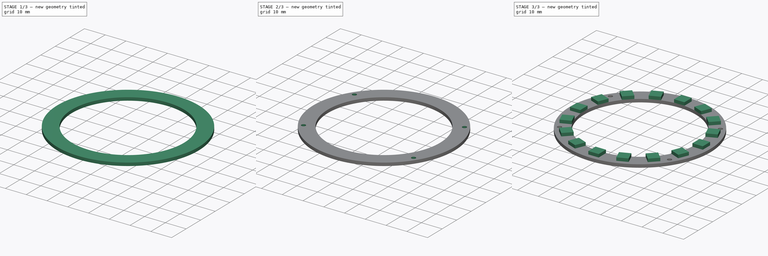
[diagram: build sequence overview — one tinted view per stage of 3, left to right]
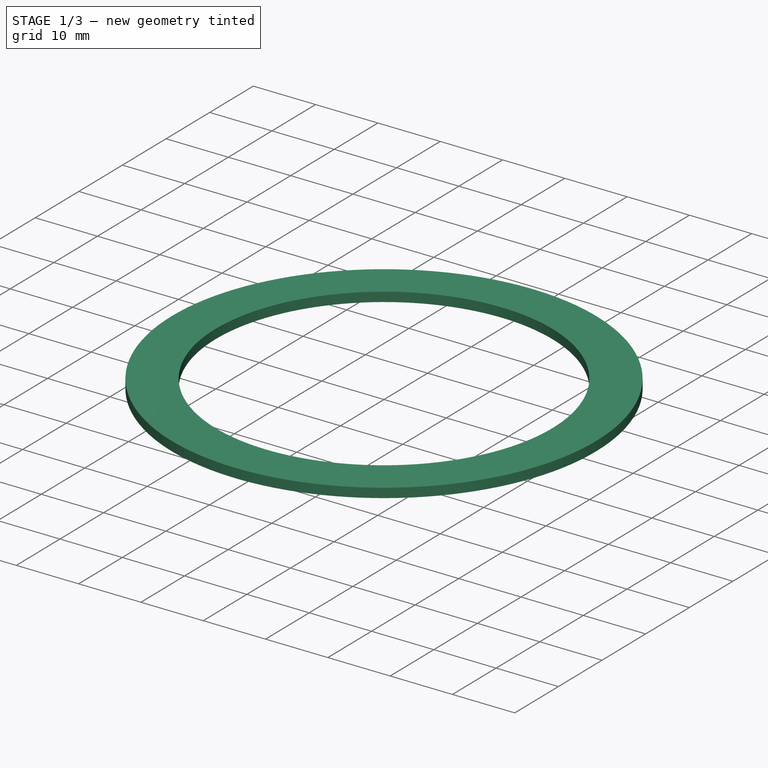
[diagram: stage 1 of 3 — iso view after this stage's code; geometry added in this stage tinted green]
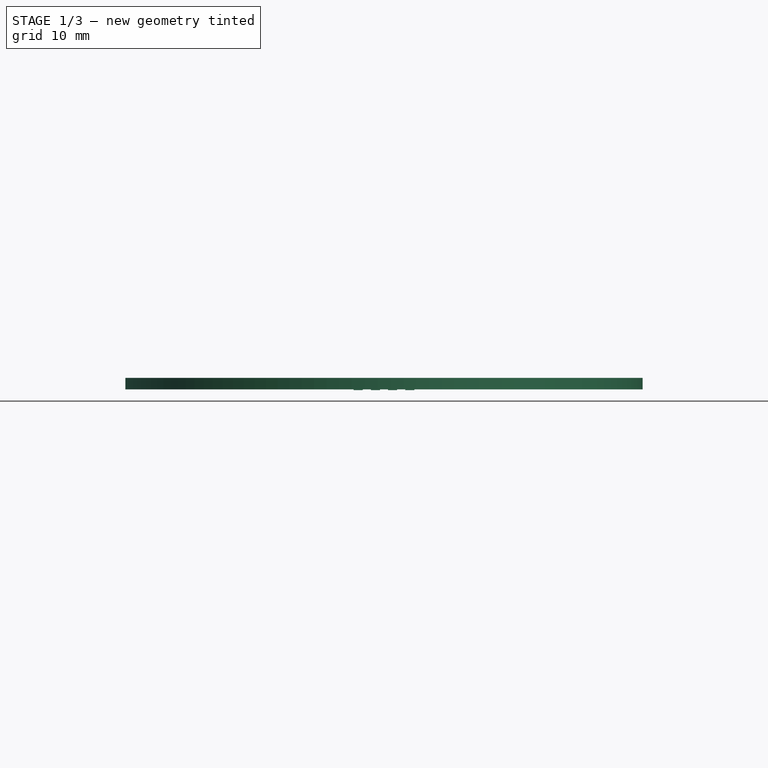
[diagram: stage 1 of 3 — front view after this stage's code; geometry added in this stage tinted green]
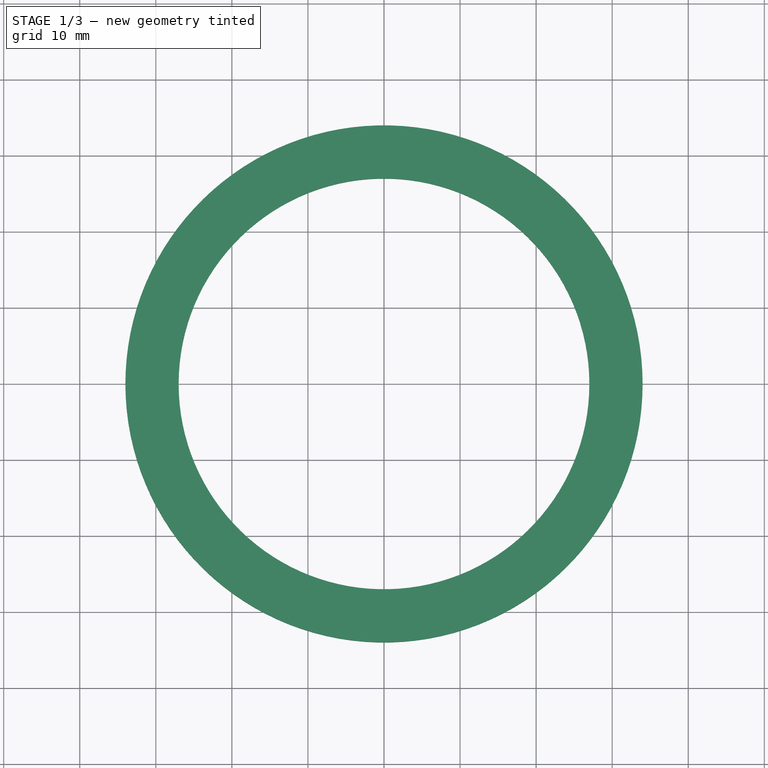
[diagram: stage 1 of 3 — top view after this stage's code; geometry added in this stage tinted green]
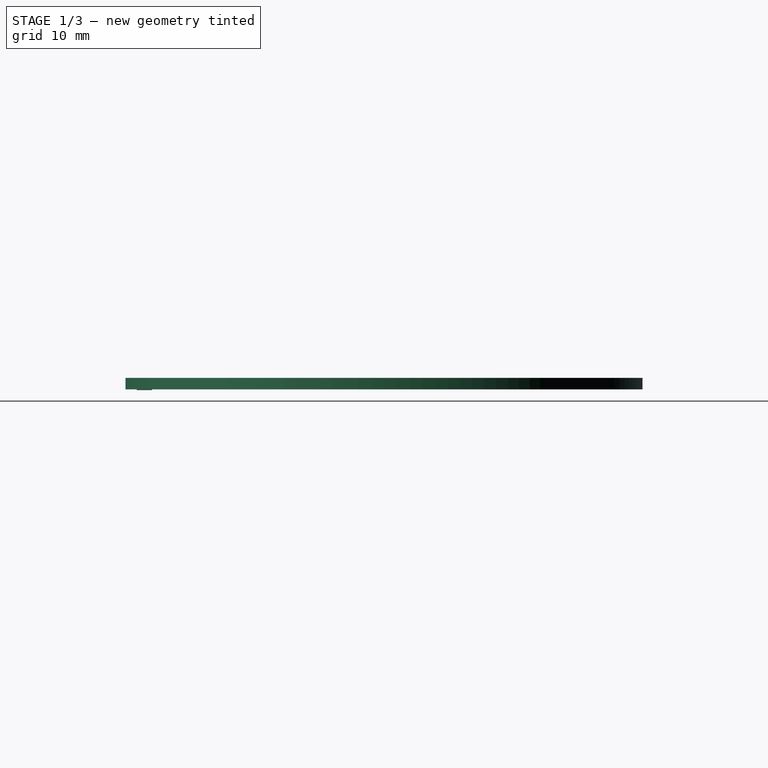
[diagram: stage 1 of 3 — right view after this stage's code; geometry added in this stage tinted green]
FCSTD DOCUMENT  (FreeCAD 1.0R39285 (Git))
Label: LED-Ring
License: All rights reserved
LicenseURL: https://en.wikipedia.org/wiki/All_rights_reserved
objects: Sketcher::SketchObject×4, PartDesign::Pad×3, PartDesign::Pocket×1, PartDesign::PolarPattern×1, PartDesign::Body×1
note: 23 computed .brp shape members not serialized (recipe doc carries the construction recipe); baked Part::Feature solids carry a one-line shape summary decoded from their .brp

FEATURE [Sketcher::SketchObject] Sketch
  ArcFitTolerance = 1e-06
  AttachmentSupport = -> [XY_Plane]
  FullyConstrained = true
  MakeInternals = false
  MapMode = 5
  sketch-geometry (2):
    g0: Circle CenterX=0 CenterY=0 CenterZ=0 NormalX=0 NormalY=0 NormalZ=1 AngleXU=0 Radius=27
    g1: Circle CenterX=0 CenterY=0 CenterZ=0 NormalX=0 NormalY=0 NormalZ=1 AngleXU=0 Radius=34
  constraints (4):
    c: Diameter(g0) = 54
    c: Coincident(g0,g-1)
    c: Diameter(g1) = 68
    c: Coincident(g1,g0)
FEATURE [PartDesign::Pad] Pad
  Direction = (0,0,1)
  Length = 1.5
  Length2 = 10
  Profile = -> Sketch
  ReferenceAxis = -> Sketch [N_Axis]
  Refine = true
  Suppressed = false
  Type = 0
FEATURE [Sketcher::SketchObject] Sketch001
  ArcFitTolerance = 1e-06
  AttachmentSupport = -> [Pad]
  ExternalGeometry = -> [Pad]
  FullyConstrained = true
  MakeInternals = false
  MapMode = 5
  Placement = pos=(0,0,0) rot=(1,0,0;3.14159rad)
  sketch-geometry (21):
    g0: LineSegment StartX=-4 StartY=32.5 StartZ=0 EndX=-4 EndY=30.5 EndZ=0
    g1: LineSegment StartX=-4 StartY=30.5 StartZ=0 EndX=-2.8 EndY=30.5 EndZ=0
    g2: LineSegment StartX=-2.8 StartY=30.5 StartZ=0 EndX=-2.8 EndY=32.5 EndZ=0
    g3: LineSegment StartX=-2.8 StartY=32.5 StartZ=0 EndX=-4 EndY=32.5 EndZ=0
    g4: LineSegment StartX=-1.73333 StartY=32.5 StartZ=0 EndX=-1.73333 EndY=30.5 EndZ=0
    g5: LineSegment StartX=-1.73333 StartY=30.5 StartZ=0 EndX=-0.533333 EndY=30.5 EndZ=0
    g6: LineSegment StartX=-0.533333 StartY=30.5 StartZ=0 EndX=-0.533333 EndY=32.5 EndZ=0
    g7: LineSegment StartX=-0.533333 StartY=32.5 StartZ=0 EndX=-1.73333 EndY=32.5 EndZ=0
    g8: LineSegment StartX=0.533333 StartY=32.5 StartZ=0 EndX=0.533333 EndY=30.5 EndZ=0
    g9: LineSegment StartX=0.533333 StartY=30.5 StartZ=0 EndX=1.73333 EndY=30.5 EndZ=0
    g10: LineSegment StartX=1.73333 StartY=30.5 StartZ=0 EndX=1.73333 EndY=32.5 EndZ=0
    g11: LineSegment StartX=1.73333 StartY=32.5 StartZ=0 EndX=0.533333 EndY=32.5 EndZ=0
    g12: LineSegment StartX=2.8 StartY=32.5 StartZ=0 EndX=2.8 EndY=30.5 EndZ=0
    g13: LineSegment StartX=2.8 StartY=30.5 StartZ=0 EndX=4 EndY=30.5 EndZ=0
    g14: LineSegment StartX=4 StartY=30.5 StartZ=0 EndX=4 EndY=32.5 EndZ=0
    g15: LineSegment StartX=4 StartY=32.5 StartZ=0 EndX=2.8 EndY=32.5 EndZ=0
    g16: LineSegment [constr] StartX=-2.8 StartY=32.5 StartZ=0 EndX=-1.73333 EndY=32.5 EndZ=0
    g17: LineSegment [constr] StartX=-0.533333 StartY=32.5 StartZ=0 EndX=0.533333 EndY=32.5 EndZ=0
    g18: LineSegment [constr] StartX=1.73333 StartY=32.5 StartZ=0 EndX=2.8 EndY=32.5 EndZ=0
    g19: GeomPoint [constr] X=0 Y=32.5 Z=0
    g20: GeomPoint [constr] X=0 Y=34 Z=0
  constraints (57):
    c: Coincident(g0,g1)
    c: Coincident(g1,g2)
    c: Coincident(g2,g3)
    c: Coincident(g3,g0)
    c: Vertical(g0)
    c: Vertical(g2)
    c: Horizontal(g1)
    c: Horizontal(g3)
    c: DistanceX(g3,g3) = 1.2
    c: DistanceY(g0,g0) = 2
    c: Coincident(g4,g5)
    c: Coincident(g5,g6)
    c: Coincident(g6,g7)
    c: Coincident(g7,g4)
    c: Vertical(g4)
    c: Vertical(g6)
    c: Horizontal(g5)
    c: Horizontal(g7)
    c: Coincident(g8,g9)
    c: Coincident(g9,g10)
    c: Coincident(g10,g11)
    c: Coincident(g11,g8)
    c: Vertical(g8)
    c: Vertical(g10)
    c: Horizontal(g9)
    c: Horizontal(g11)
    c: Coincident(g12,g13)
    c: Coincident(g13,g14)
    c: Coincident(g14,g15)
    c: Coincident(g15,g12)
    c: Vertical(g12)
    c: Vertical(g14)
    c: Horizontal(g13)
    c: Horizontal(g15)
    c: Equal(g2,g4)
    c: Equal(g4,g8)
    c: Equal(g8,g12)
    c: Equal(g3,g7)
    c: Equal(g7,g11)
    c: Equal(g11,g15)
    c: Horizontal(g2,g4)
    c: Horizontal(g4,g8)
    c: Horizontal(g8,g12)
    c: Coincident(g16,g2)
    c: Coincident(g16,g4)
    c: Coincident(g17,g6)
    c: Coincident(g17,g8)
    c: Coincident(g18,g10)
    c: Coincident(g18,g12)
    c: Equal(g16,g17)
    c: Equal(g17,g18)
    c: DistanceX(g0,g14) = 8
    c: Symmetric(g17,g17,g19)
    c: PointOnObject(g19,g-2)
    c: PointOnObject(g20,g-2)
    c: PointOnObject(g20,g-3)
    c: DistanceY(g19,g20) = 1.5
FEATURE [PartDesign::Pad] Pad001
  BaseFeature = -> Pad
  Direction = (0,0,-1)
  Length = 0.1
  Length2 = 10
  Profile = -> Sketch001
  ReferenceAxis = -> Sketch001 [N_Axis]
  Refine = true
  Suppressed = false
  Type = 0
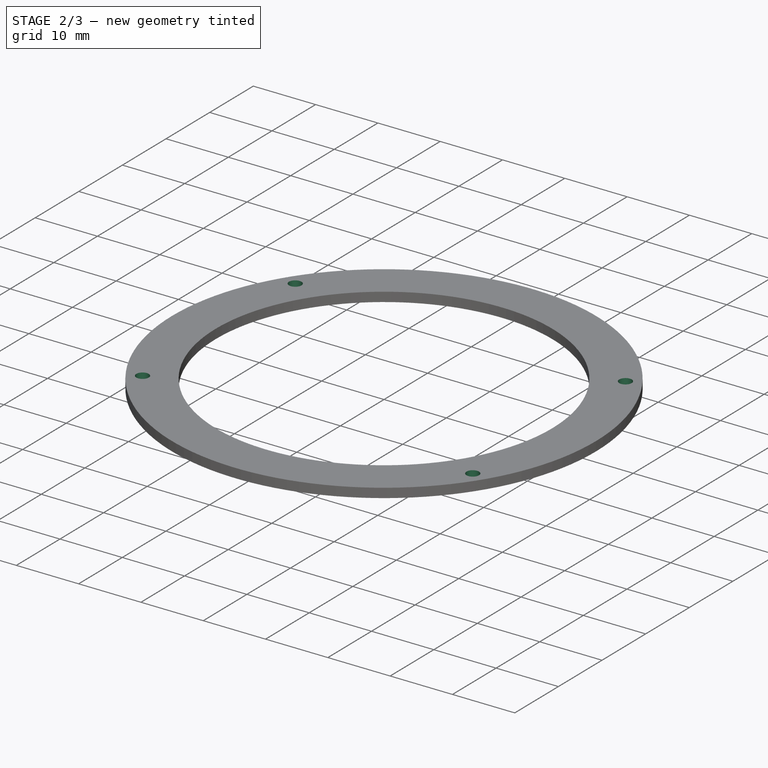
[diagram: stage 2 of 3 — iso view after this stage's code; geometry added in this stage tinted green]
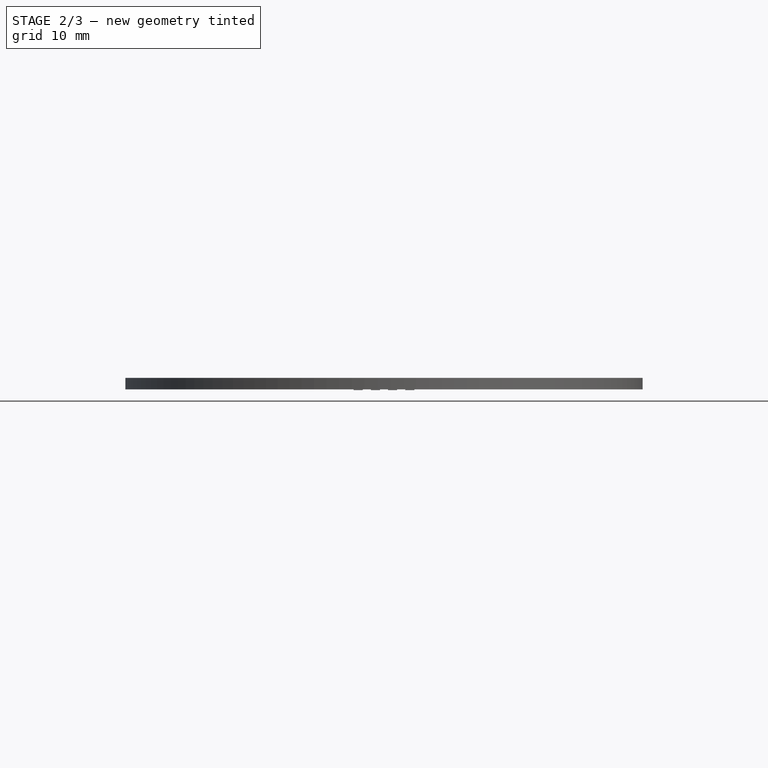
[diagram: stage 2 of 3 — front view after this stage's code; geometry added in this stage tinted green]
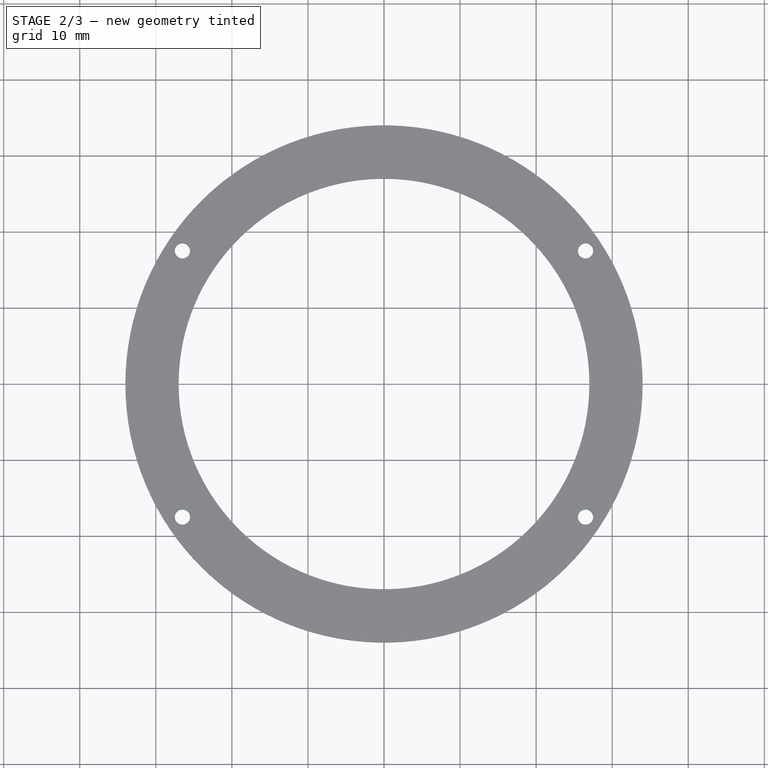
[diagram: stage 2 of 3 — top view after this stage's code; geometry added in this stage tinted green]
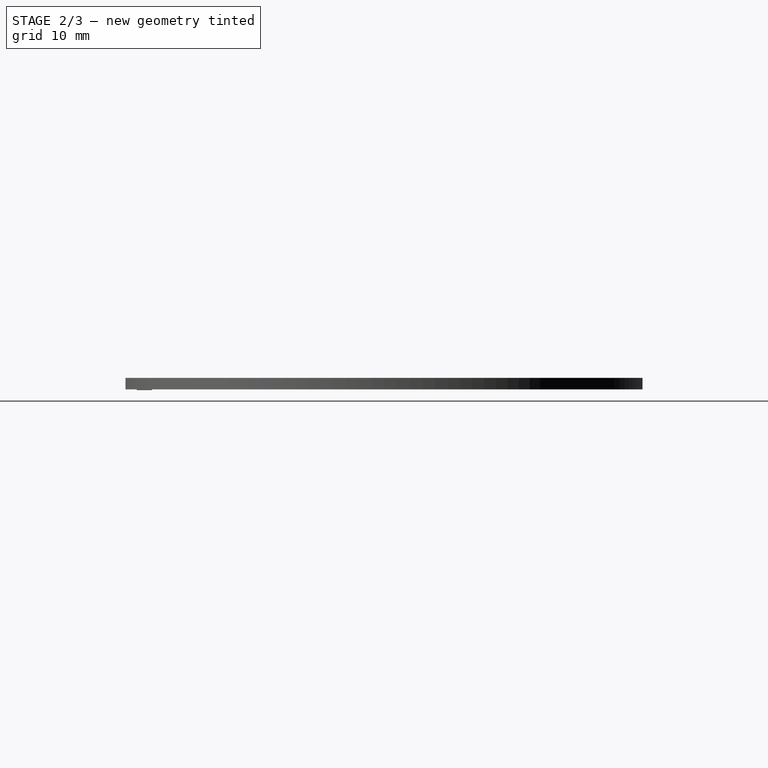
[diagram: stage 2 of 3 — right view after this stage's code; geometry added in this stage tinted green]
FEATURE [Sketcher::SketchObject] Sketch002
  ArcFitTolerance = 1e-06
  AttachmentSupport = -> [Pad001]
  FullyConstrained = true
  MakeInternals = false
  MapMode = 5
  Placement = pos=(0,0,1.5) rot=(0,0,1;0rad)
  sketch-geometry (8):
    g0: Circle CenterX=-26.5 CenterY=17.5 CenterZ=0 NormalX=0 NormalY=0 NormalZ=1 AngleXU=0 Radius=1
    g1: Circle CenterX=26.5 CenterY=17.5 CenterZ=0 NormalX=0 NormalY=0 NormalZ=1 AngleXU=0 Radius=1
    g2: Circle CenterX=26.5 CenterY=-17.5 CenterZ=0 NormalX=0 NormalY=0 NormalZ=1 AngleXU=0 Radius=1
    g3: Circle CenterX=-26.5 CenterY=-17.5 CenterZ=0 NormalX=0 NormalY=0 NormalZ=1 AngleXU=0 Radius=1
    g4: GeomPoint X=-27.5 Y=17.5 Z=0
    g5: GeomPoint X=27.5 Y=17.5 Z=0
    g6: GeomPoint X=26.5 Y=18.5 Z=0
    g7: GeomPoint X=26.5 Y=-18.5 Z=0
  constraints (19):
    c: Equal(g0,g1)
    c: Equal(g1,g2)
    c: Equal(g2,g3)
    c: Horizontal(g0,g1)
    c: Vertical(g0,g3)
    c: Horizontal(g3,g2)
    c: Vertical(g2,g1)
    c: Diameter(g1) = 2
    c: Symmetric(g0,g2,g-1)
    c: PointOnObject(g4,g0)
    c: Horizontal(g4,g0)
    c: PointOnObject(g5,g1)
    c: Horizontal(g5,g1)
    c: DistanceX(g4,g5) = 55
    c: PointOnObject(g6,g1)
    c: Vertical(g6,g1)
    c: PointOnObject(g7,g2)
    c: Vertical(g7,g2)
    c: DistanceY(g7,g6) = 37
FEATURE [PartDesign::Pocket] Pocket
  BaseFeature = -> Pad001
  Direction = (0,0,-1)
  Length = 5
  Length2 = 5
  Profile = -> Sketch002
  ReferenceAxis = -> Sketch002 [N_Axis]
  Refine = true
  Suppressed = false
  Type = 1
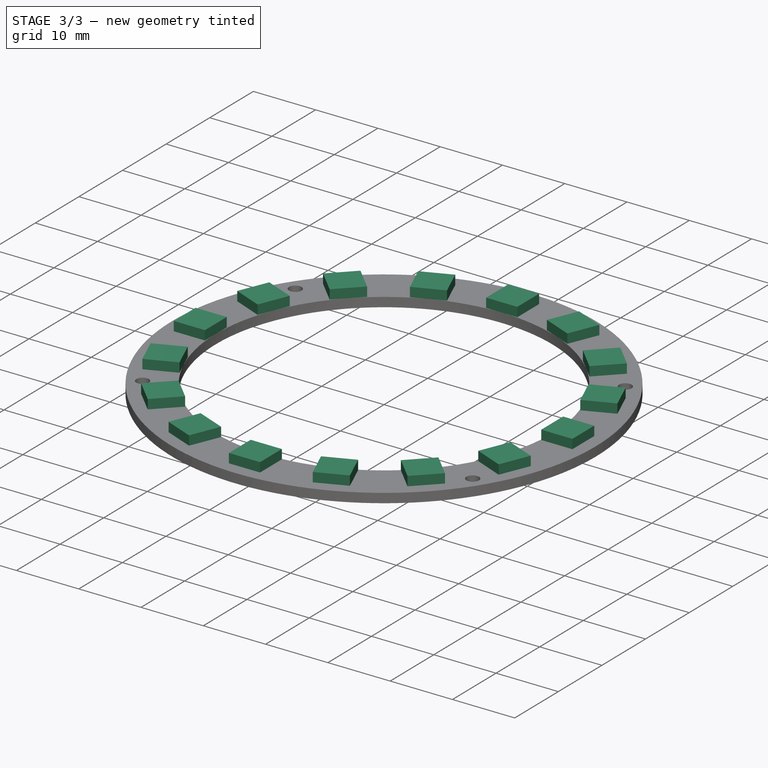
[diagram: stage 3 of 3 — iso view after this stage's code; geometry added in this stage tinted green]
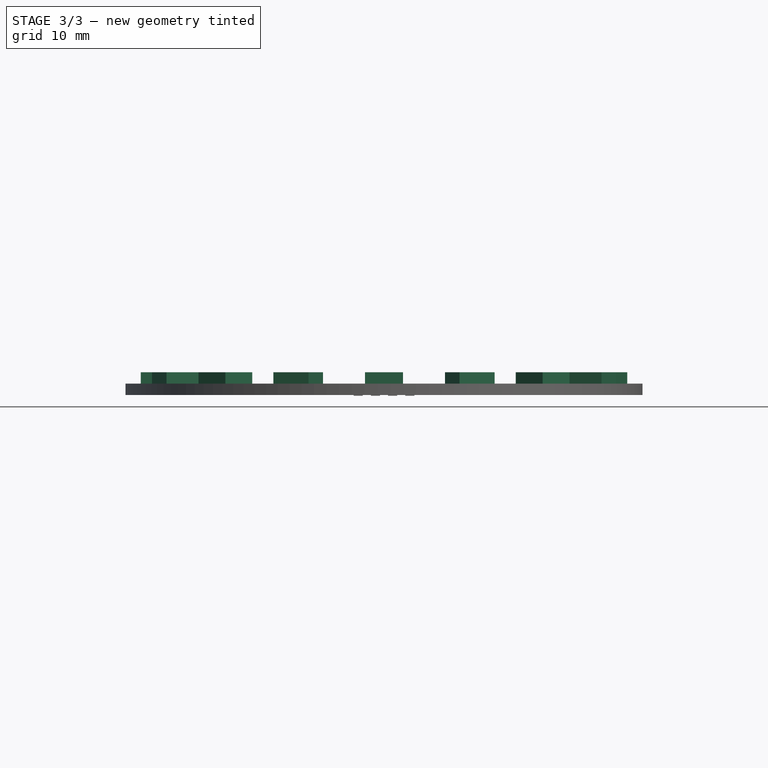
[diagram: stage 3 of 3 — front view after this stage's code; geometry added in this stage tinted green]
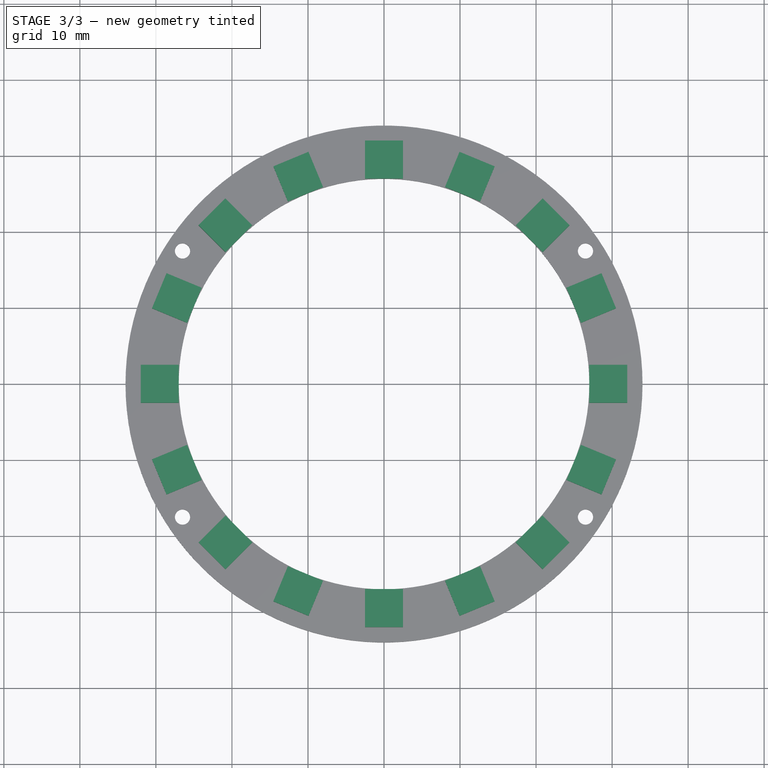
[diagram: stage 3 of 3 — top view after this stage's code; geometry added in this stage tinted green]
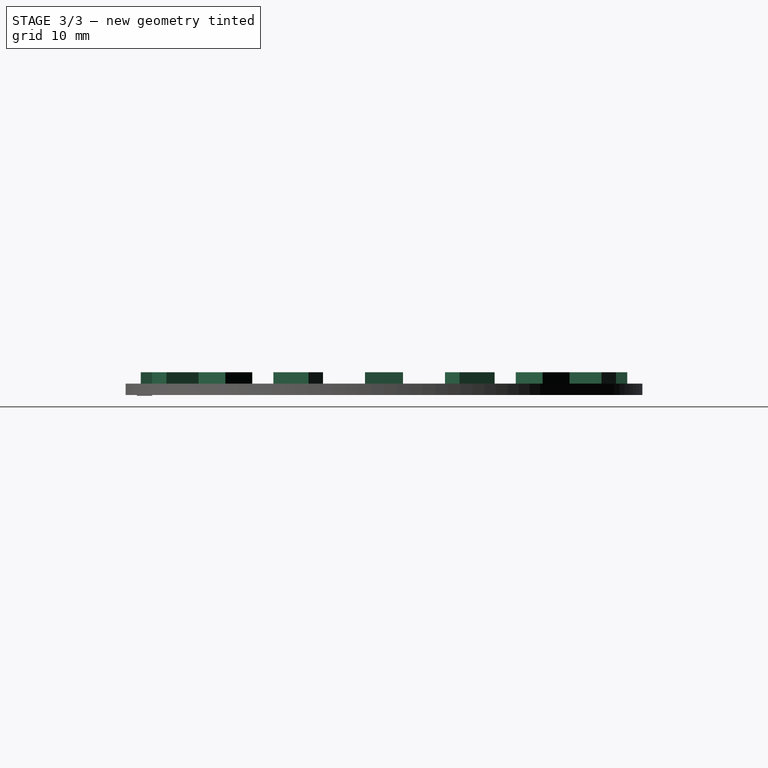
[diagram: stage 3 of 3 — right view after this stage's code; geometry added in this stage tinted green]
FEATURE [Sketcher::SketchObject] Sketch003
  ArcFitTolerance = 1e-06
  AttachmentSupport = -> [Pocket]
  ExternalGeometry = -> [Pocket]
  FullyConstrained = true
  MakeInternals = false
  MapMode = 5
  Placement = pos=(0,0,1.5) rot=(0,0,1;0rad)
  sketch-geometry (7):
    g0: LineSegment StartX=-2.5 StartY=32 StartZ=0 EndX=-2.5 EndY=27 EndZ=0
    g1: LineSegment StartX=-2.5 StartY=27 StartZ=0 EndX=2.5 EndY=27 EndZ=0
    g2: LineSegment StartX=2.5 StartY=27 StartZ=0 EndX=2.5 EndY=32 EndZ=0
    g3: LineSegment StartX=2.5 StartY=32 StartZ=0 EndX=-2.5 EndY=32 EndZ=0
    g4: GeomPoint X=0 Y=34 Z=0
    g5: GeomPoint X=0 Y=27 Z=0
    g6: GeomPoint [constr] X=0 Y=27 Z=0
  constraints (16):
    c: Coincident(g0,g1)
    c: Coincident(g1,g2)
    c: Coincident(g2,g3)
    c: Coincident(g3,g0)
    c: Vertical(g0)
    c: Vertical(g2)
    c: Horizontal(g1)
    c: Horizontal(g3)
    c: Distance(g0,g2) = 5
    c: Distance(g1,g3) = 5
    c: PointOnObject(g4,g-3)
    c: PointOnObject(g5,g-4)
    c: PointOnObject(g5,g-2)
    c: PointOnObject(g4,g-2)
    c: Symmetric(g1,g1,g6)
    c: Coincident(g5,g6)
FEATURE [PartDesign::Pad] Pad002
  BaseFeature = -> Pocket
  Direction = (0,0,1)
  Length = 1.5
  Length2 = 10
  Profile = -> Sketch003
  ReferenceAxis = -> Sketch003 [N_Axis]
  Refine = true
  Suppressed = false
  Type = 0
FEATURE [PartDesign::PolarPattern] PolarPattern
  Angle = 360
  Axis = -> Sketch003 [N_Axis]
  BaseFeature = -> Pad002
  Mode = 0
  Occurrences = 16
  Offset = 120
  Originals = -> [Pad002]
  Refine = true
  Suppressed = false
  TransformMode = 0
FEATURE [PartDesign::Body] Body  label="Körper"
  AllowCompound = false
  Group = -> [Sketch,Pad,Sketch001,Pad001,Sketch002,Pocket,Sketch003,Pad002,PolarPattern]
  Origin = -> Origin
  Tip = -> PolarPattern
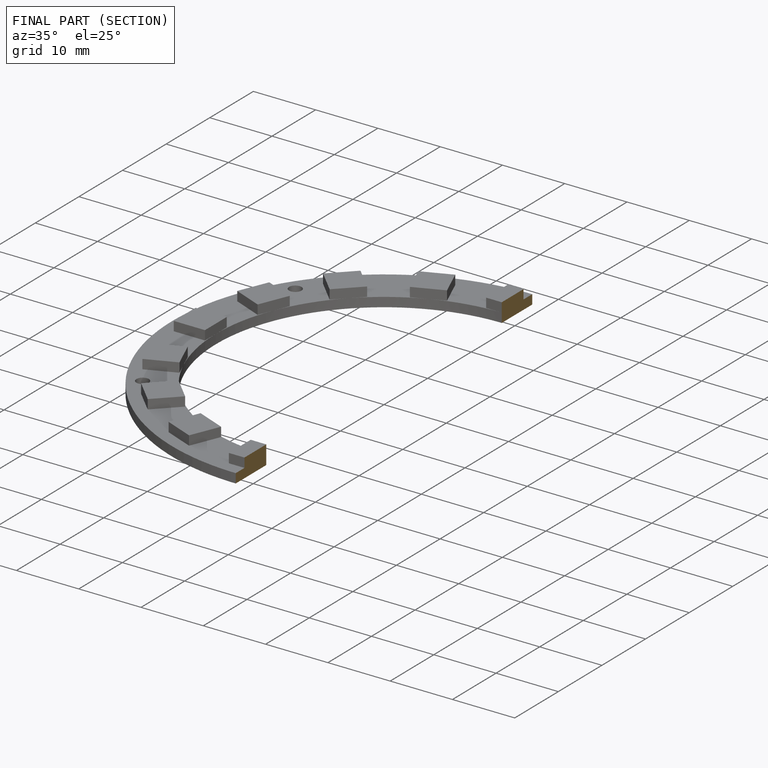
[diagram: finished part — half-section view (interior)]
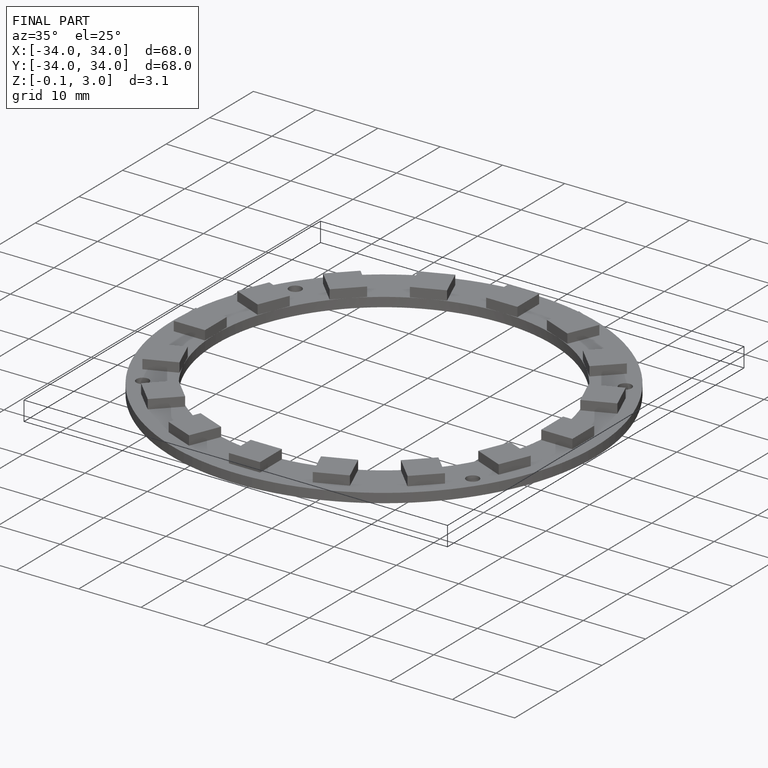
[diagram: finished part — iso view with bounding-box wireframe]
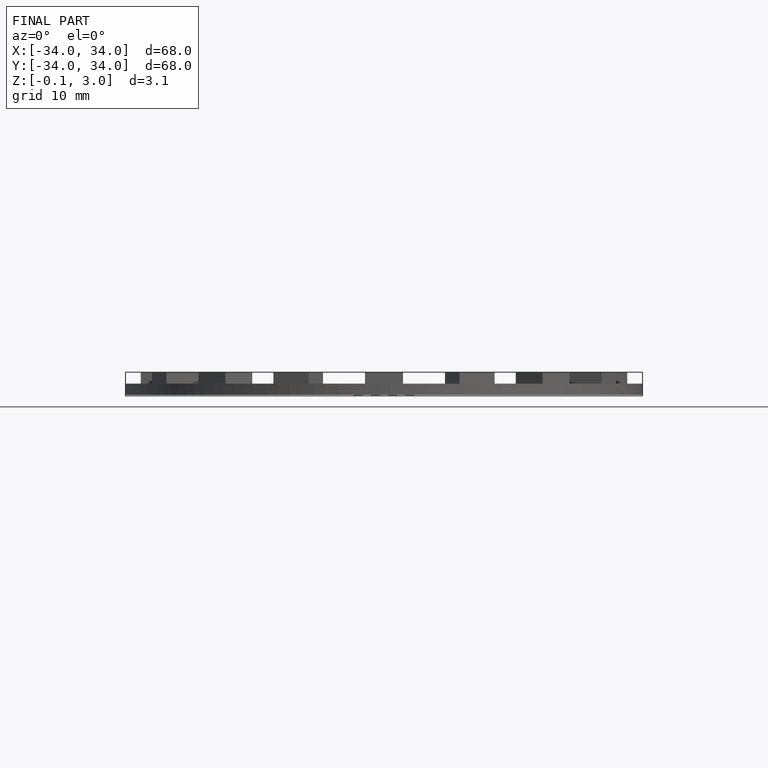
[diagram: finished part — front view with bounding-box wireframe]
